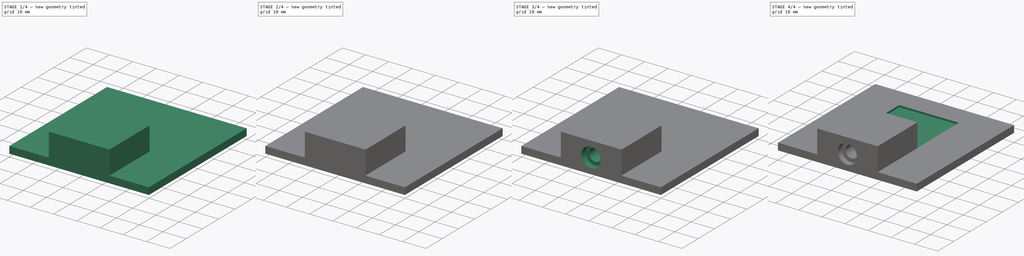
[diagram: build sequence overview — one tinted view per stage of 4, left to right]
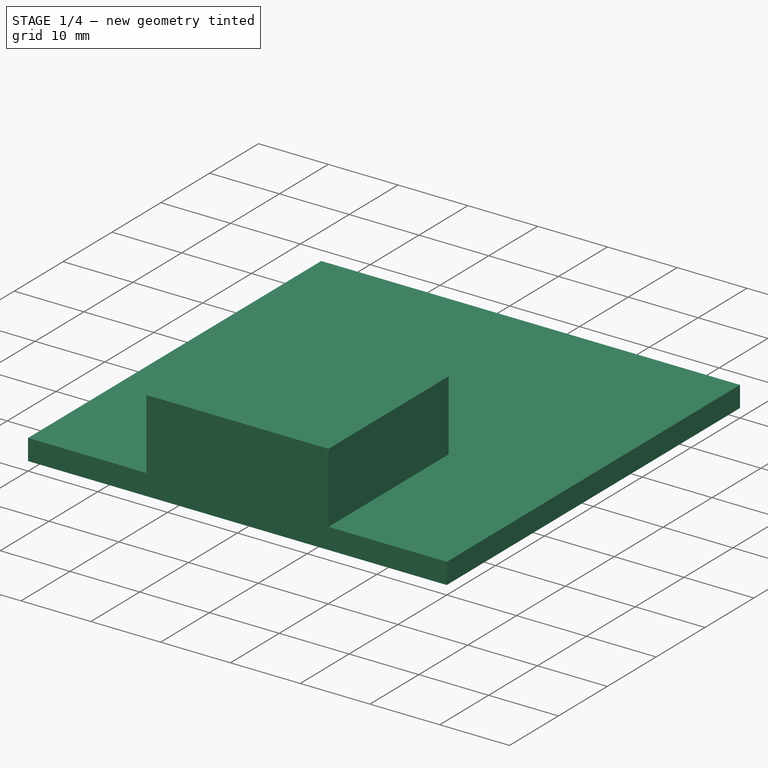
[diagram: stage 1 of 4 — iso view after this stage's code; geometry added in this stage tinted green]
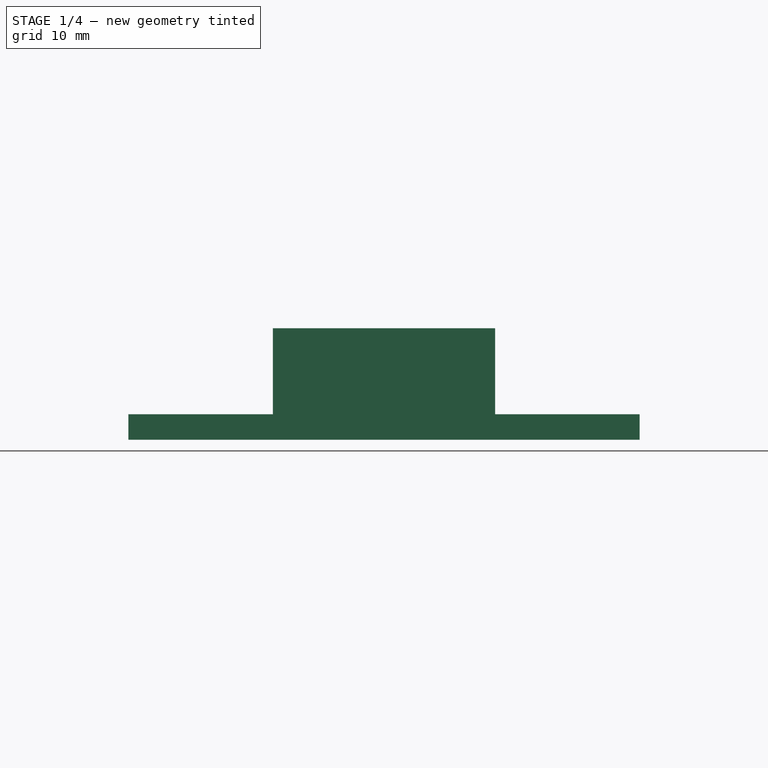
[diagram: stage 1 of 4 — front view after this stage's code; geometry added in this stage tinted green]
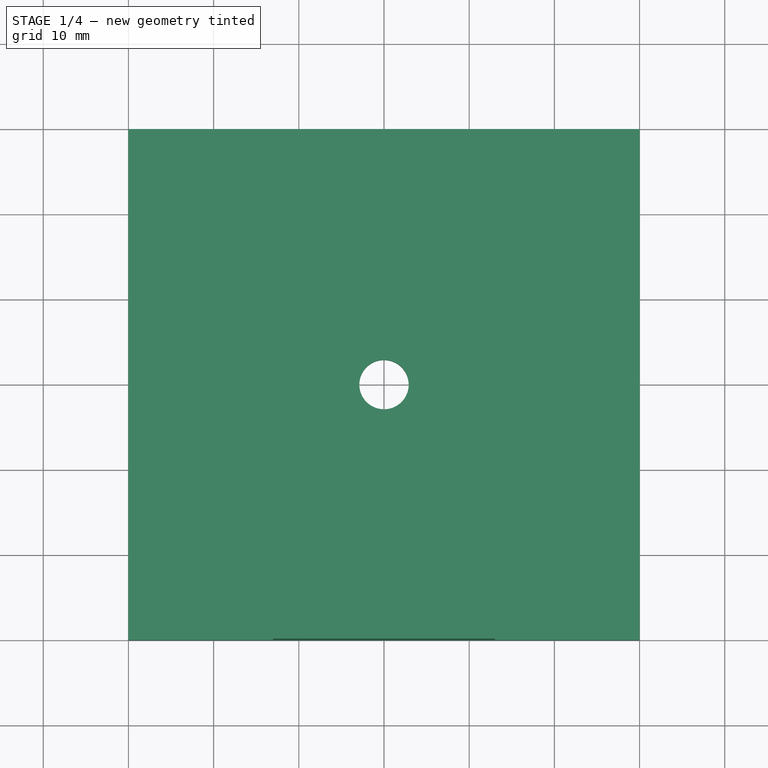
[diagram: stage 1 of 4 — top view after this stage's code; geometry added in this stage tinted green]
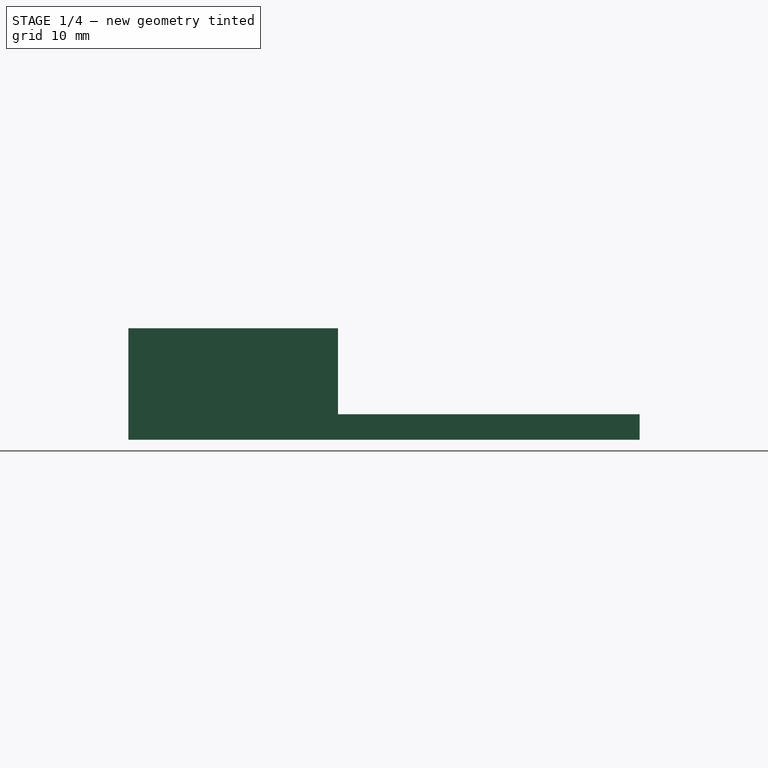
[diagram: stage 1 of 4 — right view after this stage's code; geometry added in this stage tinted green]
FCSTD DOCUMENT  (FreeCAD 0.21R33668 +26 (Git))
Label: Frontal Cap5
License: All rights reserved
LicenseURL: http://en.wikipedia.org/wiki/All_rights_reserved
objects: Sketcher::SketchObject×10, PartDesign::Pocket×6, PartDesign::Pad×5, Spreadsheet::Sheet×1, PartDesign::SubtractiveLoft×1, PartDesign::Body×1
note: 35 computed .brp shape members not serialized (recipe doc carries the construction recipe); baked Part::Feature solids carry a one-line shape summary decoded from their .brp

FEATURE [Spreadsheet::Sheet] Data
  cells = A1='Part; B1='SP1; C1='SP2; D1='SP3; E1='SP4; F1='SP5; G1='Size (mm); H1='Shape; I1='External References; N1='Design specification; A2='Front Cap; B2='Base ; F2='Height; G2==P8; H2='Square; I2='Object; J2='Subpart; K2='Measure (mm); L2='Extra margin; N2='General; O2='Subpart; P2='Measure (mm); F3='Width; G3==P9; I3='LED; J3='Length with contacts; K3=15.8; L3=2; O3='General tolerance; P3=0.2; F4='Depth; G4=3; I4='LED; J4='Diameter body; K4=8.12; O4='Wall thickness; P4=2; C5='Central Hole; F5='Diameter; G5==K10 - P3 - P4 * 2; H5='Circle; I5='LED; J5='Diameter Lens; K5=5.6; O5='Minimal thickness; P5=1; F6='Depth; G6==G4; I6='LED; J6='Total Heightt; K6=5.8; N6='Cell; O6='Light Path length; P6=50; B7='Sample input; C7='Sample input Overall structure; F7='Height; G7==G2 / 2 - G5 / 4; H7='Rectangle; I7='LED; J7='Body Heightt till contact; K7=1.5; O7='Light Path width; P7=10; F8='Width; G8==K14 + P3 + 4 * P5; I8='Glass Tube; J8='Exterior Diameter; K8=12; N8='Slide; O8='Height; P8=60; F9='Depth; G9==K14 + P3 + 2 * P5 + G4; I9='Glass Tube; J9='Wall Thickness; K9=1; O9='Width; P9=60; C10='Tubing Connector; D10='Stopper; F10='Diameter; G10==K14 + P3 * 2; H10='Circle; I10='Glass Tube; J10='Interior Diameter; K10==K8 - 2 * K9; O10='Central Hole; P10=16; F11='Depth; G11==K12 / 2; I11='Glass Tube; J11='Length; K11=35; N11='LED; O11='Distance to end of cell; P11==K10 / 2; D12='Connector; F12='Diameter; G12==K12 + P3; H12='Circle; I12='Tubing connector; J12='Connector Diameter; K12=5.1; O12='octagon side size; P12=20; F13='Depth; G13==K13 / 3; I13='Tubing connector; J13='Connector Heightt; K13=13; B14='Window; F14='Height; G14==K16 + P3 * 2; H14='Square; I14='Tubing connector; J14='Stopper Diameter; K14=7.9; F15='Width; G15==P3 * 2 + K17; I15='Tubing connector; J15='Stopper Heightt; K15=2.7; F16='Depth; G16==G9 - 2; I16='Glass window; J16='Width; K16=25.6; F17='Distance from edge; G17=1.5; I17='Glass window; J17='Heightt; K17=25.6; B18='Tube Holder; F18='Outer Diameter; G18==K10 - P3 * 1.1; H18='Two concentric Circles; I18='Glass window; J18='Thickness; K18=1; F19='Inner Diameter; G19==G5; F20='Length; G20=2.5; B21='LED holder; C21='interior; F21='Interior face size; G21==P12 + P3 * 1.5; H21='Two concentric Octagons; C22='exterior; F22='Distance between exterior and interior; G22==P4; F23='Length; G23==G20 - (K4 - K5) / 2 - P3
FEATURE [Sketcher::SketchObject] Sketch
  FullyConstrained = true
  MapMode = 5
  Support = -> [XY_Plane]
  expr: Constraints[9] = <<Data>>.G2
  sketch-geometry (4):
    g0: LineSegment StartX=-30 StartY=30 StartZ=0 EndX=30 EndY=30 EndZ=0
    g1: LineSegment StartX=30 StartY=30 StartZ=0 EndX=30 EndY=-30 EndZ=0
    g2: LineSegment StartX=30 StartY=-30 StartZ=0 EndX=-30 EndY=-30 EndZ=0
    g3: LineSegment StartX=-30 StartY=-30 StartZ=0 EndX=-30 EndY=30 EndZ=0
  constraints (11):
    c: Coincident(g0,g1)
    c: Coincident(g1,g2)
    c: Coincident(g2,g3)
    c: Coincident(g3,g0)
    c: Horizontal(g0)
    c: Horizontal(g2)
    c: Vertical(g1)
    c: Vertical(g3)
    c: Equal(g0,g3)
    c: DistanceX(g0,g0) = 60
    c: Symmetric(g1,g0,g-1)
FEATURE [PartDesign::Pad] Pad  label="Base "
  Direction = (0,0,1)
  Length = 3
  Length2 = 10
  Profile = -> Sketch
  ReferenceAxis = -> Sketch [N_Axis]
  Type = 0
  expr: Label = <<Data>>.B2
  expr: Length = <<Data>>.G4
FEATURE [Sketcher::SketchObject] Sketch001
  FullyConstrained = true
  MapMode = 5
  Placement = pos=(0,0,3) rot=(0,0,1;0rad)
  Support = -> [Pad]
  expr: Constraints[1] = <<Data>>.G5
  sketch-geometry (1):
    g0: Circle CenterX=0 CenterY=0 CenterZ=0 NormalX=0 NormalY=0 NormalZ=1 AngleXU=0 Radius=2.9
  constraints (2):
    c: Coincident(g0,g-1)
    c: Diameter(g0) = 5.8
FEATURE [PartDesign::Pocket] Pocket  label="Central Hole"
  BaseFeature = -> Pad
  Direction = (0,0,-1)
  Length = 3
  Length2 = 5
  Profile = -> Sketch001
  ReferenceAxis = -> Sketch001 [N_Axis]
  Type = 0
  expr: Label = <<Data>>.C5
  expr: Length = <<Data>>.G6
FEATURE [Sketcher::SketchObject] Sketch002
  ExternalGeometry = -> [Pocket]
  FullyConstrained = true
  MapMode = 5
  Placement = pos=(0,0,0) rot=(1,0,0;3.14159rad)
  Support = -> [Pocket]
  expr: Constraints[10] = 26.1
  expr: Constraints[9] = 24.6
  sketch-geometry (4):
    g0: LineSegment StartX=-13.05 StartY=30 StartZ=0 EndX=13.05 EndY=30 EndZ=0
    g1: LineSegment StartX=13.05 StartY=30 StartZ=0 EndX=13.05 EndY=5.4 EndZ=0
    g2: LineSegment StartX=13.05 StartY=5.4 StartZ=0 EndX=-13.05 EndY=5.4 EndZ=0
    g3: LineSegment StartX=-13.05 StartY=5.4 StartZ=0 EndX=-13.05 EndY=30 EndZ=0
  constraints (11):
    c: Coincident(g0,g1)
    c: Coincident(g1,g2)
    c: Coincident(g2,g3)
    c: Coincident(g3,g0)
    c: Horizontal(g2)
    c: Vertical(g1)
    c: Vertical(g3)
    c: PointOnObject(g0,g-3)
    c: Symmetric(g0,g0,g-2)
    c: DistanceY(g1,g1) = 24.6
    c: DistanceX(g2,g1) = 26.1
FEATURE [PartDesign::Pad] Pad001  label="Sample input Overall structure"
  BaseFeature = -> Pocket
  Direction = (0,0,-1)
  Length = 13.1
  Length2 = 10
  Profile = -> Sketch002
  ReferenceAxis = -> Sketch002 [N_Axis]
  Reversed = true
  Type = 0
  expr: Label = <<Data>>.C7
  expr: Length = <<Data>>.G9
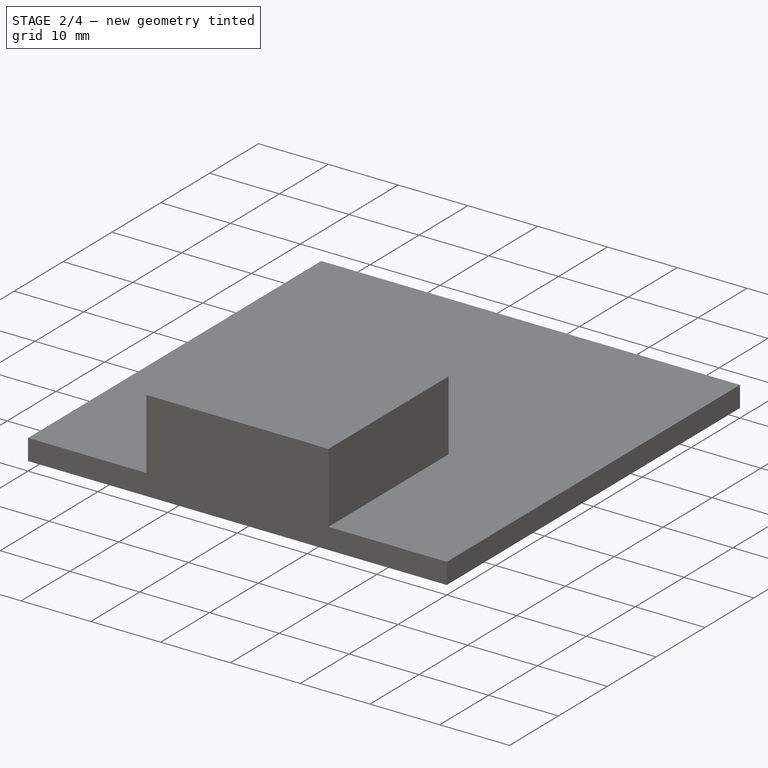
[diagram: stage 2 of 4 — iso view after this stage's code; geometry added in this stage tinted green]
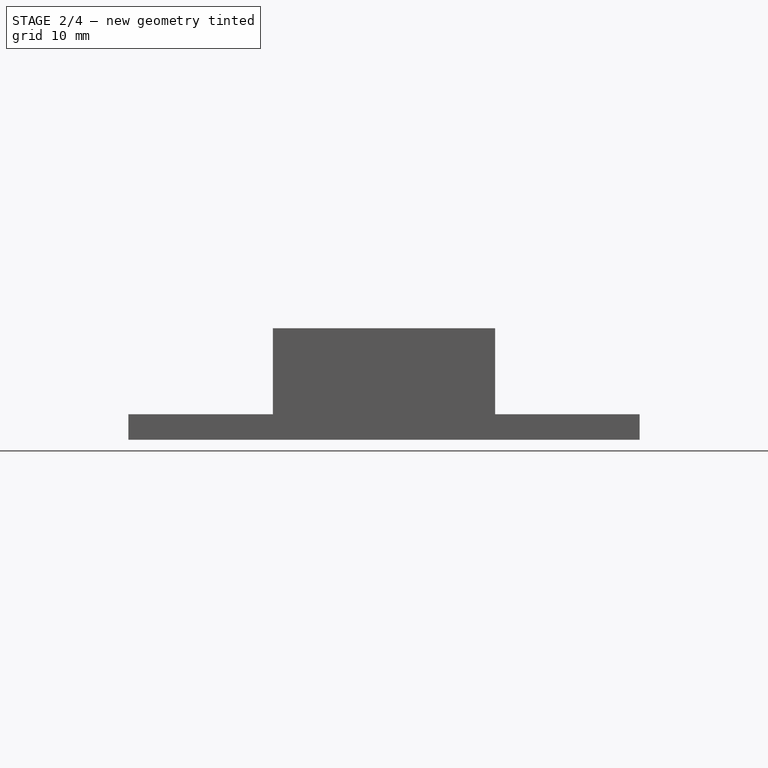
[diagram: stage 2 of 4 — front view after this stage's code; geometry added in this stage tinted green]
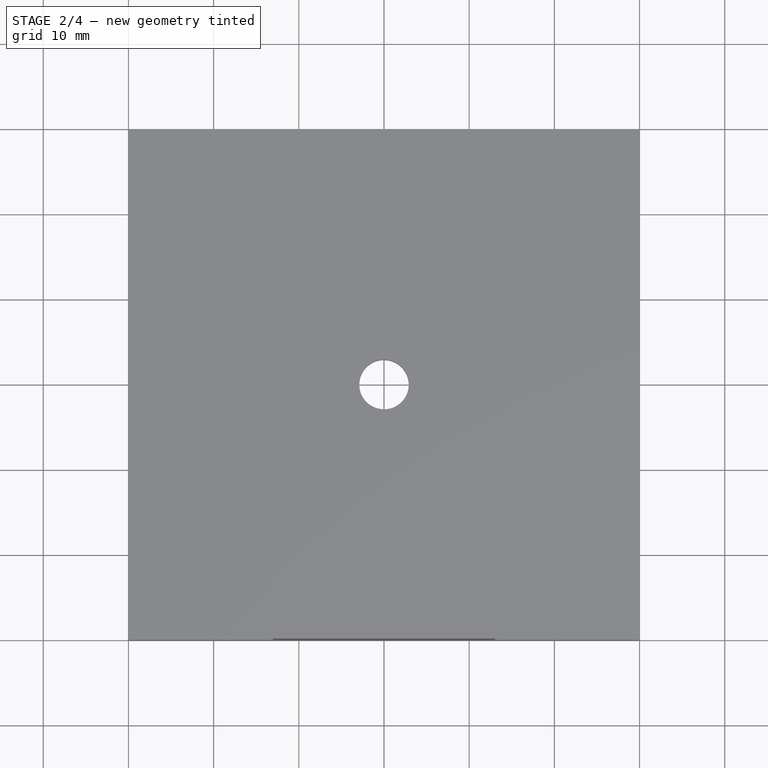
[diagram: stage 2 of 4 — top view after this stage's code; geometry added in this stage tinted green]
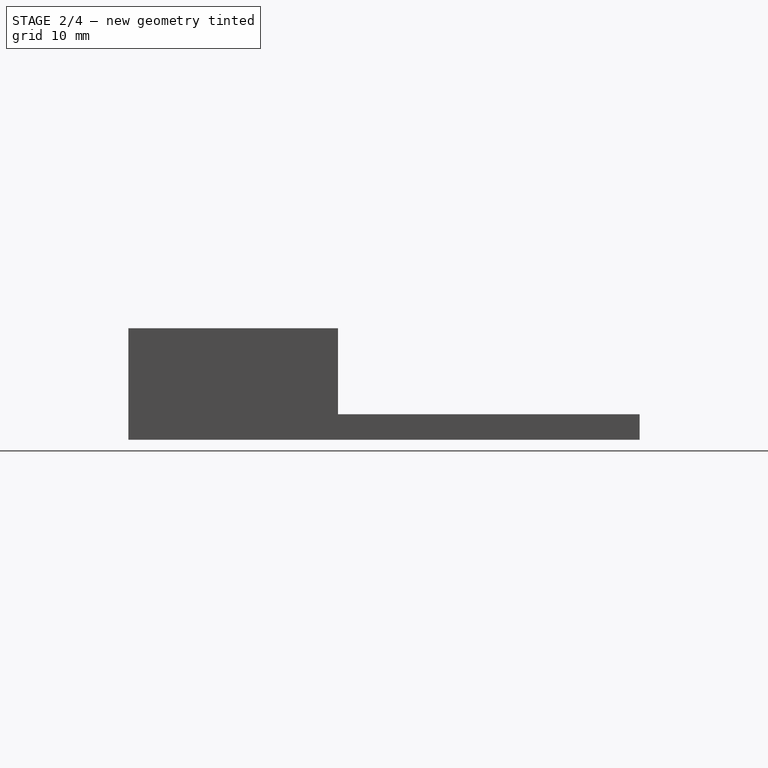
[diagram: stage 2 of 4 — right view after this stage's code; geometry added in this stage tinted green]
FEATURE [Sketcher::SketchObject] Sketch003
  ExternalGeometry = -> [Pad001]
  FullyConstrained = true
  MapMode = 5
  Placement = pos=(0,0,3) rot=(0,0,1;0rad)
  Support = -> [Pad001]
  expr: Constraints[10] = <<Data>>.G5
  expr: Constraints[11] = <<Data>>.G5 / 2
  expr: Constraints[9] = <<Data>>.G5 / 4
  sketch-geometry (4):
    g0: LineSegment StartX=-2.9 StartY=-5.4 StartZ=0 EndX=2.9 EndY=-5.4 EndZ=0
    g1: LineSegment StartX=2.9 StartY=-5.4 StartZ=0 EndX=2.9 EndY=-1.45 EndZ=0
    g2: LineSegment StartX=2.9 StartY=-1.45 StartZ=0 EndX=-2.9 EndY=-1.45 EndZ=0
    g3: LineSegment StartX=-2.9 StartY=-1.45 StartZ=0 EndX=-2.9 EndY=-5.4 EndZ=0
  constraints (12):
    c: Coincident(g0,g1)
    c: Coincident(g1,g2)
    c: Coincident(g2,g3)
    c: Coincident(g3,g0)
    c: Horizontal(g0)
    c: Horizontal(g2)
    c: Vertical(g1)
    c: Vertical(g3)
    c: PointOnObject(g0,g-3)
    c: DistanceY(g1,g-1) = 1.45
    c: DistanceX(g2,g2) = 5.8
    c: DistanceX(g2,g-1) = 2.9
FEATURE [PartDesign::Pad] Pad002
  BaseFeature = -> Pad001
  Direction = (0,0,1)
  Length = 3
  Length2 = 10
  Profile = -> Sketch003
  ReferenceAxis = -> Sketch003 [N_Axis]
  Reversed = true
  Type = 0
  expr: Length = <<Data>>.G4
FEATURE [Sketcher::SketchObject] Sketch004
  ExternalGeometry = -> [Pad002]
  FullyConstrained = true
  MapMode = 5
  Placement = pos=(0,-1.45,0) rot=(0,0.707107,0.707107;3.14159rad)
  Support = -> [Pad002]
  sketch-geometry (4):
    g0: LineSegment StartX=-2.51147 StartY=0.8 StartZ=0 EndX=2.51147 EndY=0.8 EndZ=0
    g1: LineSegment StartX=2.51147 StartY=0.8 StartZ=0 EndX=2.51147 EndY=1.4 EndZ=0
    g2: LineSegment StartX=2.51147 StartY=1.4 StartZ=0 EndX=-2.51147 EndY=1.4 EndZ=0
    g3: LineSegment StartX=-2.51147 StartY=1.4 StartZ=0 EndX=-2.51147 EndY=0.8 EndZ=0
  constraints (12):
    c: Coincident(g0,g1)
    c: Coincident(g1,g2)
    c: Coincident(g2,g3)
    c: Coincident(g3,g0)
    c: Horizontal(g0)
    c: Horizontal(g2)
    c: Vertical(g1)
    c: Vertical(g3)
    c: PointOnObject(g0,g-3)
    c: PointOnObject(g1,g-4)
    c: DistanceY(g3,g3) = 0.6
    c: DistanceY(g-3,g0) = 0.8
FEATURE [PartDesign::Pocket] Pocket001
  BaseFeature = -> Pad002
  Direction = (0,-1,2e-16)
  Length = 3.95
  Length2 = 5
  Profile = -> Sketch004
  ReferenceAxis = -> Sketch004 [N_Axis]
  Type = 0
  expr: Length = 3.95
FEATURE [PartDesign::Pocket] Pocket002
  BaseFeature = -> Pocket001
  Direction = (0,0,-1)
  Length = 5
  Length2 = 5
  Profile = -> Pocket001 [Face24]
  Type = 0
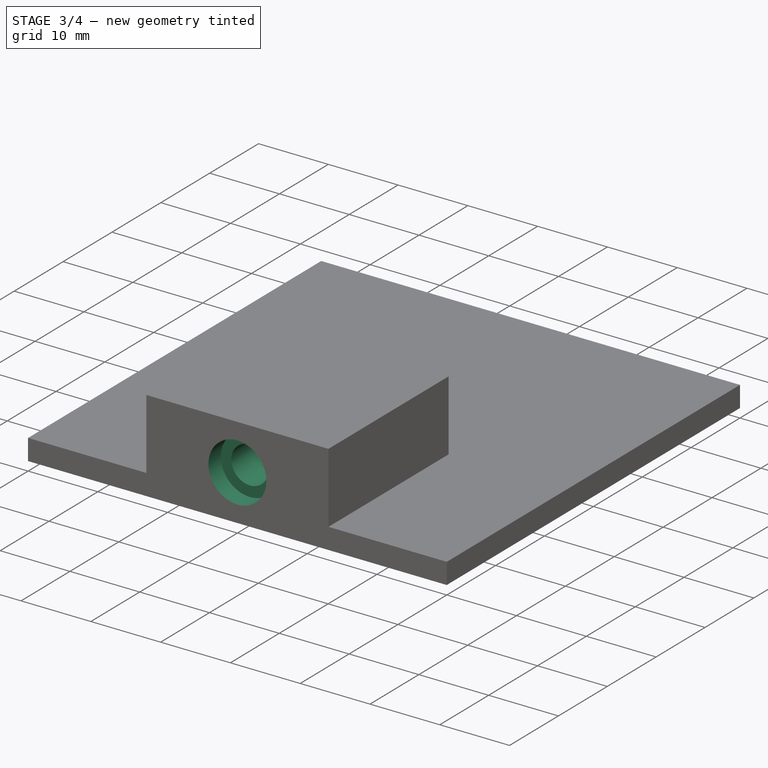
[diagram: stage 3 of 4 — iso view after this stage's code; geometry added in this stage tinted green]
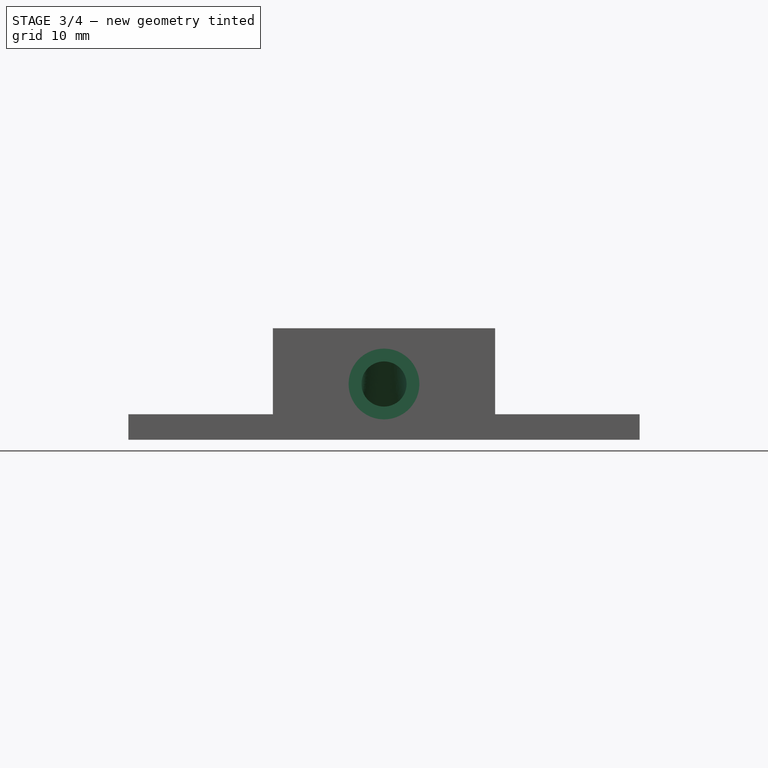
[diagram: stage 3 of 4 — front view after this stage's code; geometry added in this stage tinted green]
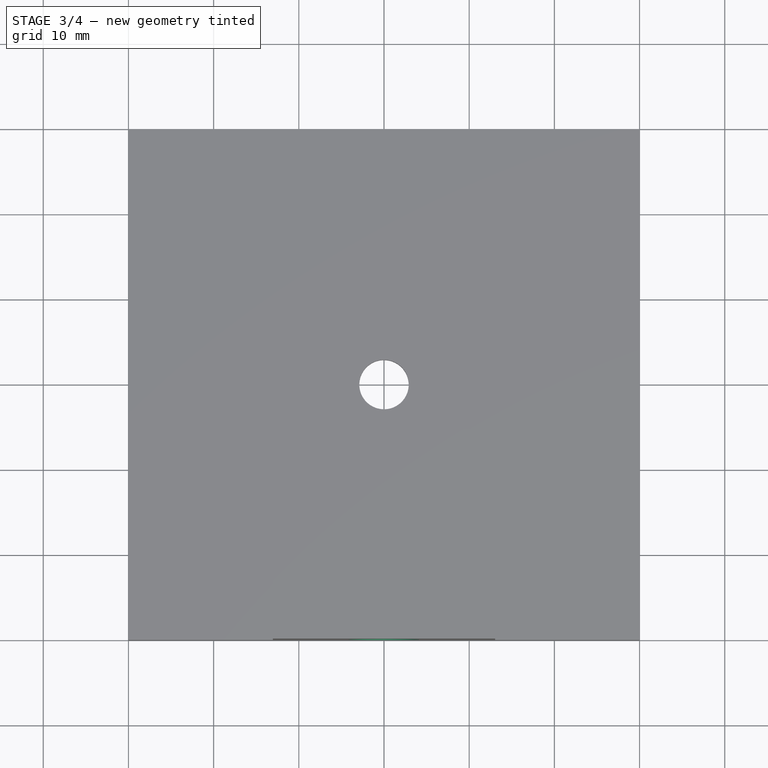
[diagram: stage 3 of 4 — top view after this stage's code; geometry added in this stage tinted green]
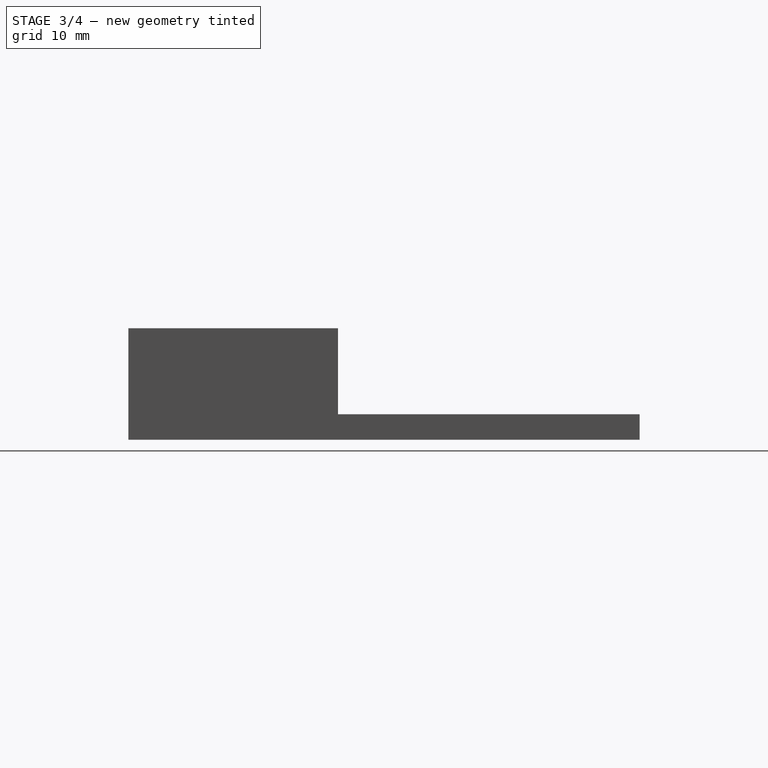
[diagram: stage 3 of 4 — right view after this stage's code; geometry added in this stage tinted green]
FEATURE [Sketcher::SketchObject] Sketch005
  ExternalGeometry = -> [Pocket002]
  FullyConstrained = true
  MapMode = 5
  Placement = pos=(0,-30,0) rot=(1,0,0;1.5708rad)
  Support = -> [Pocket002]
  expr: Constraints[0] = <<Data>>.G10
  sketch-geometry (1):
    g0: Circle CenterX=-2e-16 CenterY=6.55 CenterZ=0 NormalX=0 NormalY=0 NormalZ=1 AngleXU=0 Radius=4.15
  constraints (2):
    c: Diameter(g0) = 8.3
    c: Symmetric(g-3,g-4,g0)
FEATURE [PartDesign::Pocket] Pocket003
  BaseFeature = -> Pocket002
  Direction = (0,1,-2e-16)
  Length = 2.55
  Length2 = 5
  Profile = -> Sketch005
  ReferenceAxis = -> Sketch005 [N_Axis]
  Type = 0
  expr: Length = <<Data>>.G11
FEATURE [Sketcher::SketchObject] Sketch006
  ExternalGeometry = -> [Pocket003]
  FullyConstrained = true
  MapMode = 5
  Placement = pos=(-7.8e-15,-27.45,1.36e-14) rot=(1,0,0;1.5708rad)
  Support = -> [Pocket003]
  expr: Constraints[1] = <<Data>>.G12
  sketch-geometry (1):
    g0: Circle CenterX=0 CenterY=6.55 CenterZ=0 NormalX=0 NormalY=0 NormalZ=1 AngleXU=0 Radius=2.65
  constraints (2):
    c: Coincident(g0,g-3)
    c: Diameter(g0) = 5.3
FEATURE [PartDesign::Pocket] Pocket004
  BaseFeature = -> Pocket003
  Direction = (3e-16,1,-4e-16)
  Length = 4.33333
  Length2 = 5
  Profile = -> Sketch006
  ReferenceAxis = -> Sketch006 [N_Axis]
  Type = 0
  expr: Length = <<Data>>.G13
FEATURE [PartDesign::SubtractiveLoft] SubtractiveLoft
  BaseFeature = -> Pocket004
  Closed = false
  Profile = -> Pocket004 [Face26]
  Ruled = false
  Sections = -> [Pocket004]
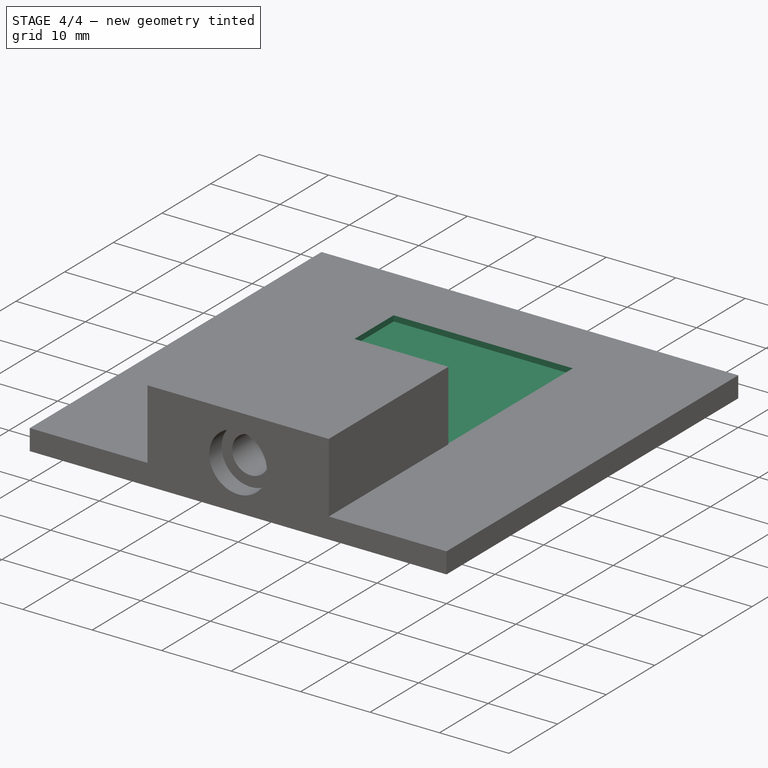
[diagram: stage 4 of 4 — iso view after this stage's code; geometry added in this stage tinted green]
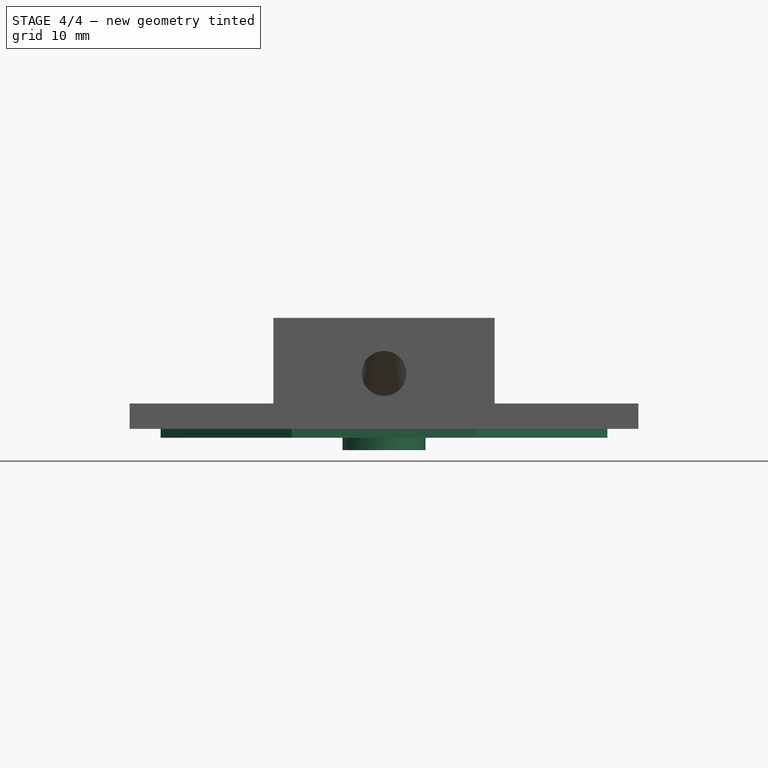
[diagram: stage 4 of 4 — front view after this stage's code; geometry added in this stage tinted green]
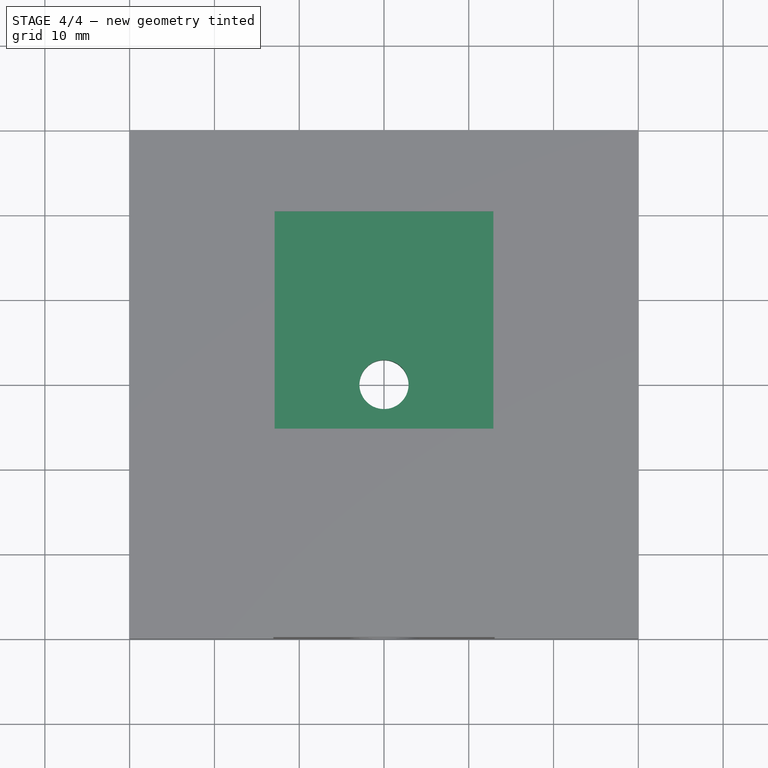
[diagram: stage 4 of 4 — top view after this stage's code; geometry added in this stage tinted green]
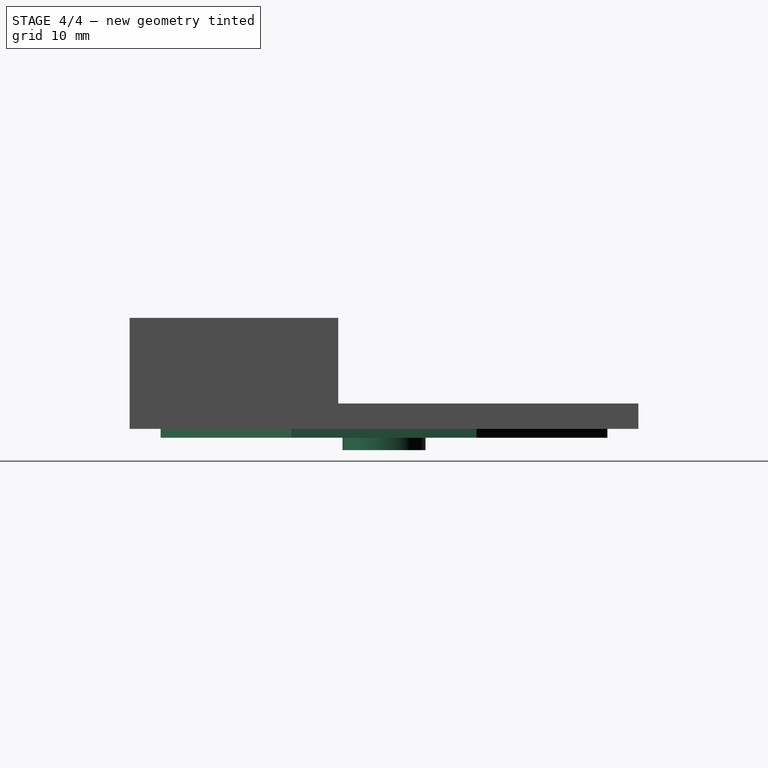
[diagram: stage 4 of 4 — right view after this stage's code; geometry added in this stage tinted green]
FEATURE [Sketcher::SketchObject] Sketch007
  ExternalGeometry = -> [SubtractiveLoft]
  FullyConstrained = true
  MapMode = 5
  Placement = pos=(0,0,3) rot=(0,0,1;0rad)
  Support = -> [SubtractiveLoft]
  sketch-geometry (4):
    g0: LineSegment StartX=12.9 StartY=-5.4 StartZ=0 EndX=-12.9 EndY=-5.4 EndZ=0
    g1: LineSegment StartX=-12.9 StartY=-5.4 StartZ=0 EndX=-12.9 EndY=20.4 EndZ=0
    g2: LineSegment StartX=-12.9 StartY=20.4 StartZ=0 EndX=12.9 EndY=20.4 EndZ=0
    g3: LineSegment StartX=12.9 StartY=20.4 StartZ=0 EndX=12.9 EndY=-5.4 EndZ=0
  constraints (11):
    c: Coincident(g0,g1)
    c: Coincident(g1,g2)
    c: Coincident(g2,g3)
    c: Coincident(g3,g0)
    c: Horizontal(g2)
    c: Vertical(g1)
    c: Vertical(g3)
    c: PointOnObject(g0,g-4)
    c: Symmetric(g0,g0,g-2)
    c: Equal(g1,g2)
    c: DistanceX(g2,g2) = 25.8
FEATURE [PartDesign::Pocket] Pocket005
  BaseFeature = -> SubtractiveLoft
  Direction = (0,0,-1)
  Length = 0.8
  Length2 = 5
  Profile = -> Sketch007
  ReferenceAxis = -> Sketch007 [N_Axis]
  Type = 0
FEATURE [Sketcher::SketchObject] Sketch008
  FullyConstrained = true
  MapMode = 5
  Placement = pos=(0,0,0) rot=(1,0,0;3.14159rad)
  Support = -> [Pocket005]
  expr: Constraints[2] = <<Data>>.G18
  expr: Constraints[3] = <<Data>>.G19
  sketch-geometry (2):
    g0: Circle CenterX=0 CenterY=0 CenterZ=0 NormalX=0 NormalY=0 NormalZ=1 AngleXU=0 Radius=2.9
    g1: Circle CenterX=0 CenterY=0 CenterZ=0 NormalX=0 NormalY=0 NormalZ=1 AngleXU=0 Radius=4.89
  constraints (4):
    c: Coincident(g0,g-1)
    c: Coincident(g1,g0)
    c: Diameter(g1) = 9.78
    c: Diameter(g0) = 5.8
FEATURE [PartDesign::Pad] Pad003
  BaseFeature = -> Pocket005
  Direction = (0,0,-1)
  Length = 2.5
  Length2 = 10
  Profile = -> Sketch008
  ReferenceAxis = -> Sketch008 [N_Axis]
  Type = 0
  expr: Length = <<Data>>.G20
FEATURE [Sketcher::SketchObject] Sketch009
  FullyConstrained = true
  MapMode = 5
  Placement = pos=(0,0,0) rot=(1,0,0;3.14159rad)
  Support = -> [Pad003]
  expr: Constraints[50] = <<Data>>.G22
  expr: Constraints[51] = <<Data>>.G21
  sketch-geometry (18):
    g0: LineSegment StartX=-10.15 StartY=24.5043 StartZ=0 EndX=-24.5043 EndY=10.15 EndZ=0
    g1: LineSegment StartX=-24.5043 StartY=10.15 StartZ=0 EndX=-24.5043 EndY=-10.15 EndZ=0
    g2: LineSegment StartX=-24.5043 StartY=-10.15 StartZ=0 EndX=-10.15 EndY=-24.5043 EndZ=0
    g3: LineSegment StartX=-10.15 StartY=-24.5043 StartZ=0 EndX=10.15 EndY=-24.5043 EndZ=0
    g4: LineSegment StartX=10.15 StartY=-24.5043 StartZ=0 EndX=24.5043 EndY=-10.15 EndZ=0
    g5: LineSegment StartX=24.5043 StartY=-10.15 StartZ=0 EndX=24.5043 EndY=10.15 EndZ=0
    g6: LineSegment StartX=24.5043 StartY=10.15 StartZ=0 EndX=10.15 EndY=24.5043 EndZ=0
    g7: LineSegment StartX=10.15 StartY=24.5043 StartZ=0 EndX=-10.15 EndY=24.5043 EndZ=0
    g8: Circle CenterX=0 CenterY=0 CenterZ=0 NormalX=0 NormalY=0 NormalZ=1 AngleXU=0 Radius=26.5232
    g9: LineSegment StartX=-10.9154 StartY=26.352 StartZ=0 EndX=-26.352 EndY=10.9154 EndZ=0
    g10: LineSegment StartX=-26.352 StartY=10.9154 StartZ=0 EndX=-26.352 EndY=-10.9154 EndZ=0
    g11: LineSegment StartX=-26.352 StartY=-10.9154 StartZ=0 EndX=-10.9154 EndY=-26.352 EndZ=0
    g12: LineSegment StartX=-10.9154 StartY=-26.352 StartZ=0 EndX=10.9154 EndY=-26.352 EndZ=0
    g13: LineSegment StartX=10.9154 StartY=-26.352 StartZ=0 EndX=26.352 EndY=-10.9154 EndZ=0
    g14: LineSegment StartX=26.352 StartY=-10.9154 StartZ=0 EndX=26.352 EndY=10.9154 EndZ=0
    g15: LineSegment StartX=26.352 StartY=10.9154 StartZ=0 EndX=10.9154 EndY=26.352 EndZ=0
    g16: LineSegment StartX=10.9154 StartY=26.352 StartZ=0 EndX=-10.9154 EndY=26.352 EndZ=0
    g17: Circle CenterX=0 CenterY=0 CenterZ=0 NormalX=0 NormalY=0 NormalZ=1 AngleXU=0 Radius=28.5232
  constraints (40):
    c: Coincident(g0,g1)
    c: Coincident(g1,g2)
    c: Coincident(g2,g3)
    c: Coincident(g3,g4)
    c: Coincident(g4,g5)
    c: Coincident(g5,g6)
    c: Coincident(g6,g7)
    c: Coincident(g7,g0)
    c: Equal(g0, g1-g7) x7
    c: PointOnObject(g0,g8)
    c: PointOnObject(g1,g8)
    c: PointOnObject(g2,g8)
    c: PointOnObject(g3,g8)
    c: PointOnObject(g4,g8)
    c: PointOnObject(g5,g8)
    c: PointOnObject(g6,g8)
    c: PointOnObject(g7,g8)
    c: Coincident(g8,g-1)
    c: Horizontal(g7)
    c: Coincident(g9,g10)
    c: Coincident(g10,g11)
    c: Coincident(g11,g12)
    c: Coincident(g12,g13)
    c: Coincident(g13,g14)
    c: Coincident(g14,g15)
    c: Coincident(g15,g16)
    c: Coincident(g16,g9)
    c: Equal(g9, g10-g16) x7
    c: PointOnObject(g9,g17)
    c: PointOnObject(g10,g17)
    c: PointOnObject(g11,g17)
    c: PointOnObject(g12,g17)
    c: PointOnObject(g13,g17)
    c: PointOnObject(g14,g17)
    c: PointOnObject(g15,g17)
    c: PointOnObject(g16,g17)
    c: Coincident(g17,g8)
    c: Parallel(g7,g16)
    c: Distance(g9,g0) = 2
    c: DistanceX(g7,g7) = 20.3
FEATURE [PartDesign::Pad] Pad004
  BaseFeature = -> Pad003
  Direction = (0,0,-1)
  Length = 1.04
  Length2 = 10
  Profile = -> Sketch009
  ReferenceAxis = -> Sketch009 [N_Axis]
  Type = 0
  expr: Length = <<Data>>.G23
FEATURE [PartDesign::Body] Body  label="Frontal Cap"
  Group = -> [Sketch,Pad,Sketch001,Pocket,Sketch002,Pad001,Sketch003,Pad002,Sketch004,Pocket001,Pocket002,Sketch005,Pocket003,Sketch006,Pocket004,SubtractiveLoft,Sketch007,Pocket005,Sketch008,Pad003,Sketch009,Pad004]
  Origin = -> Origin
  Tip = -> Pad004
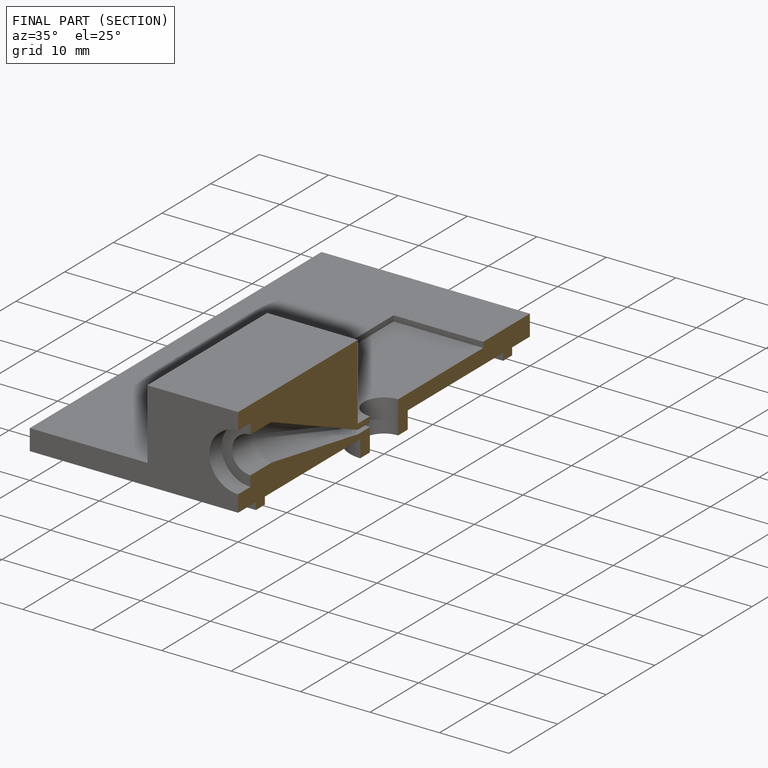
[diagram: finished part — half-section view (interior)]
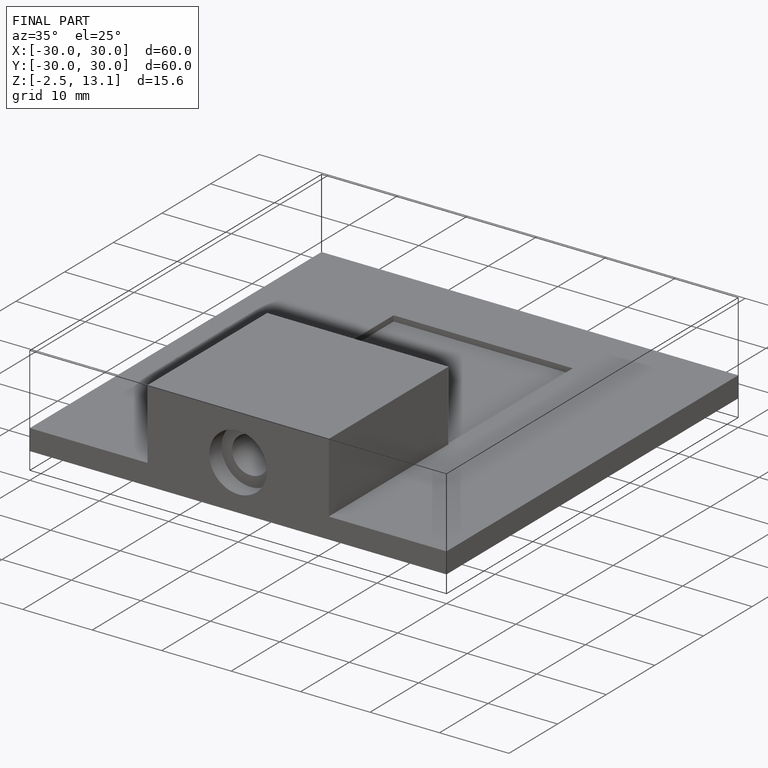
[diagram: finished part — iso view with bounding-box wireframe]
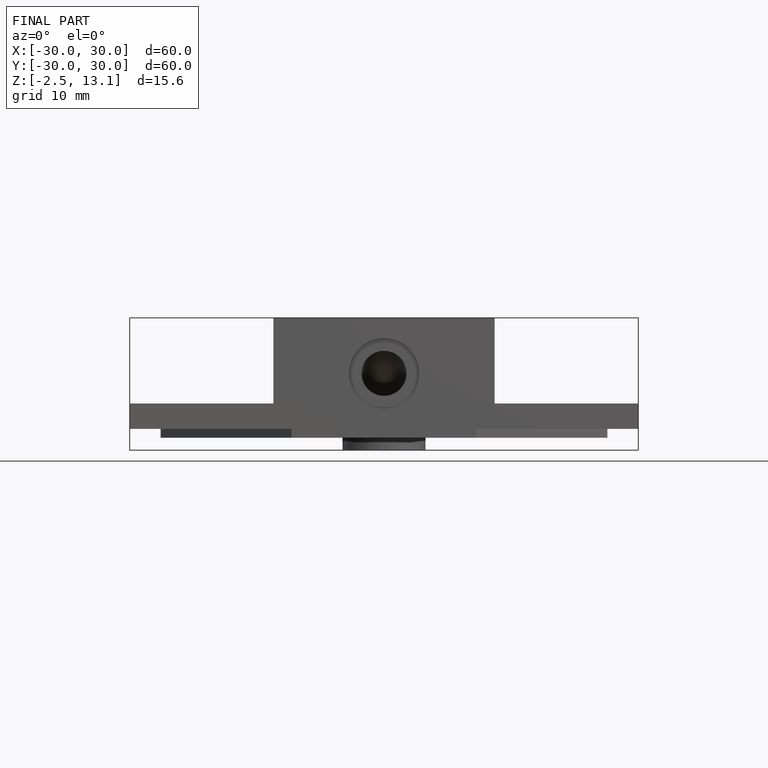
[diagram: finished part — front view with bounding-box wireframe]
